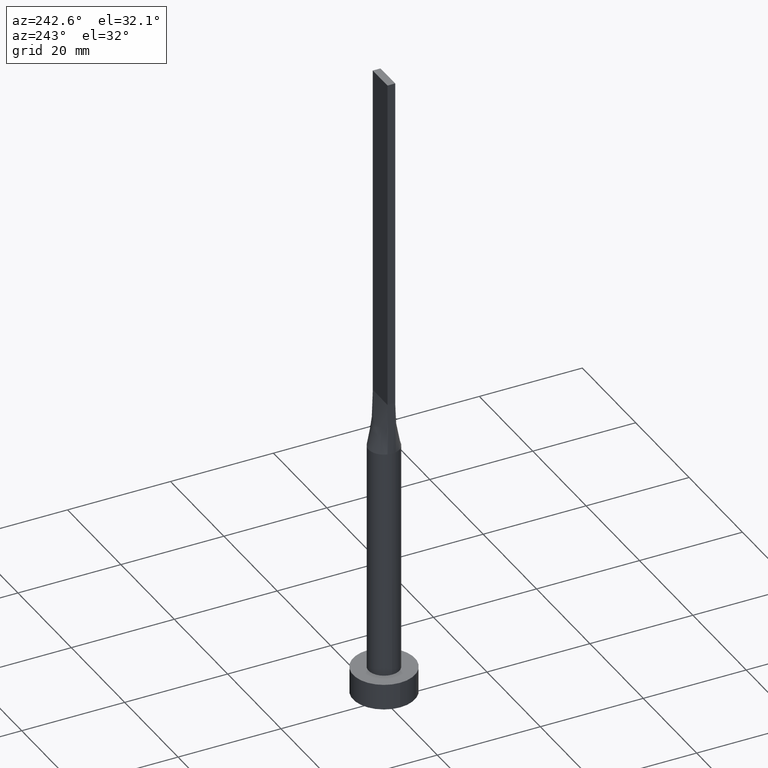
[diagram: clean part render]
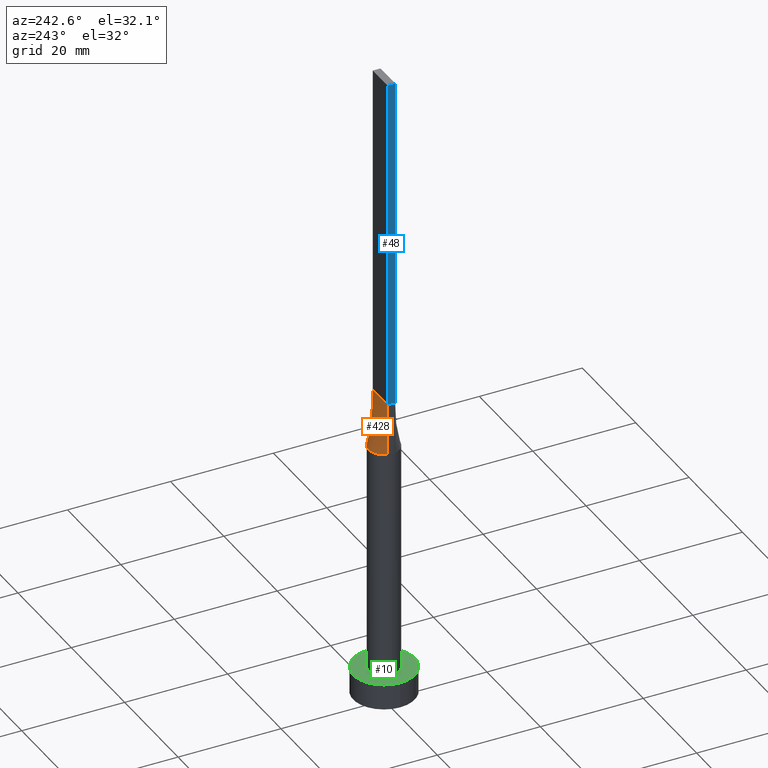
[diagram: same view with three faces highlighted in distinct colors, each labeled with its STEP entity id]
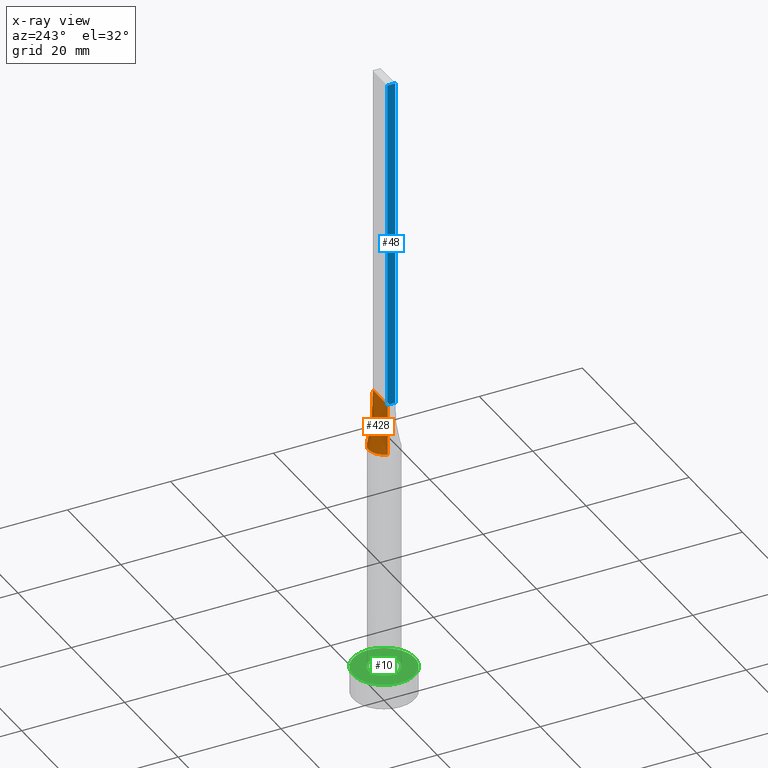
[diagram: x-ray of the same camera — body ghosted, the three highlighted faces saturated]
A machine part, auxiliary view with three faces highlighted in distinct colors.
The next image is the same camera in x-ray (body ghosted, the three faces saturated) — at least one of them is partly hidden behind the body in this view.
Their STEP definitions:

[orange] entity #428 — the highlighted face is a freeform B-spline surface patch.
#3 = CARTESIAN_POINT ( 'NONE',  ( -0.7628506052746797383, 2.924692134573155133, 50.00000000000001421 ) ) ;
#4 = CARTESIAN_POINT ( 'NONE',  ( -1.604166666666666075, 0.7500000000000002220, 60.00000000000000000 ) ) ;
#18 = CARTESIAN_POINT ( 'NONE',  ( -2.733316749964668002, 1.269511353635830453, 50.00000000000000711 ) ) ;
#44 = CARTESIAN_POINT ( 'NONE',  ( -1.447928580458858416, 2.653161878569119558, 50.00000000000000711 ) ) ;
#46 = CARTESIAN_POINT ( 'NONE',  ( 0.2291666666666677121, 0.7500000000000003331, 60.00000000000000000 ) ) ;
#50 = CARTESIAN_POINT ( 'NONE',  ( 1.833333333333333925, 0.7500000000000002220, 60.00000000000000000 ) ) ;
#68 = CARTESIAN_POINT ( 'NONE',  ( -2.830829925251659329, 1.022044525068634302, 50.00000000000000711 ) ) ;
#87 = CARTESIAN_POINT ( 'NONE',  ( 0.9166666666666676289, 0.7500000000000003331, 60.00000000000000000 ) ) ;
#90 = CARTESIAN_POINT ( 'NONE',  ( 2.442412046818595250, 1.765588549521970529, 49.99999999999999289 ) ) ;
#94 = CARTESIAN_POINT ( 'NONE',  ( 2.442412046818595250, 1.765588549521970529, 49.99999999999999289 ) ) ;
#95 = CARTESIAN_POINT ( 'NONE',  ( 2.248179627679386172, 2.014142483996539834, 49.99999999999998579 ) ) ;
#112 = ORIENTED_EDGE ( 'NONE', *, *, #255, .T. ) ;
#113 = CARTESIAN_POINT ( 'NONE',  ( -2.894506632021299541, 0.7894116946786271516, 49.99999999999999289 ) ) ;
#114 = CARTESIAN_POINT ( 'NONE',  ( 2.750000000000000000, 0.7500000000000002220, 60.00000000000000000 ) ) ;
#117 = EDGE_CURVE ( 'NONE', #457, #373, #244, .T. ) ;
#127 = CARTESIAN_POINT ( 'NONE',  ( 2.822145731856598339, 0.7696761086881640512, 54.99999999999999289 ) ) ;
#134 = CARTESIAN_POINT ( 'NONE',  ( 2.520833333333333481, 0.7500000000000002220, 60.00000000000000000 ) ) ;
#137 = CARTESIAN_POINT ( 'NONE',  ( -1.751288851749021491, 2.458468820606022565, 49.99999999999997868 ) ) ;
#151 = VECTOR ( 'NONE', #209, 1000.000000000000000 ) ;
#182 = DIRECTION ( 'NONE',  ( -1.000000000000000000, -0.000000000000000000, -0.000000000000000000 ) ) ;
#188 = CARTESIAN_POINT ( 'NONE',  ( 2.733316749964668446, 1.269511353635831341, 50.00000000000001421 ) ) ;
#191 = CARTESIAN_POINT ( 'NONE',  ( 1.751288851749022379, 2.458468820606022565, 49.99999999999998579 ) ) ;
#192 = CARTESIAN_POINT ( 'NONE',  ( -0.7628506052746797383, 2.924692134573155133, 50.00000000000001421 ) ) ;
#194 = VECTOR ( 'NONE', #485, 1000.000000000000000 ) ;
#209 = DIRECTION ( 'NONE',  ( 0.01442753284129399960, -0.003934781683989194319, 0.9998881756422629552 ) ) ;
#224 = CARTESIAN_POINT ( 'NONE',  ( -0.3818979204996078569, 3.000000000000000888, 49.99999999999999289 ) ) ;
#225 = CARTESIAN_POINT ( 'NONE',  ( -2.291666666666666075, 0.7500000000000002220, 60.00000000000000000 ) ) ;
#228 = CARTESIAN_POINT ( 'NONE',  ( -2.733316749964668002, 1.269511353635830453, 50.00000000000000711 ) ) ;
#230 = CARTESIAN_POINT ( 'NONE',  ( 2.894482401701604424, 0.7894050286368272662, 49.99999999999999289 ) ) ;
#244 = B_SPLINE_CURVE_WITH_KNOTS ( 'NONE', 3,
 ( #536, #542, #495, #94, #317, #191, #270, #506, #444, #224, #3, #539, #274, #380, #468, #18, #68, #113 ),
 .UNSPECIFIED., .F., .F.,
 ( 4, 2, 2, 2, 2, 2, 2, 2, 4 ),
 ( 0.000000000000000000, 0.1250000000000000000, 0.2500000000000000000, 0.3750000000000000000, 0.5000000000000000000, 0.6250000000000000000, 0.7500000000000000000, 0.8750000000000000000, 1.000000000000000000 ),
 .UNSPECIFIED. ) ;
#253 = ORIENTED_EDGE ( 'NONE', *, *, #117, .T. ) ;
#255 = EDGE_CURVE ( 'NONE', #373, #360, #329, .T. ) ;
#263 = CARTESIAN_POINT ( 'NONE',  ( -2.894291463713196677, 0.7893522173763257710, 49.99999999999999289 ) ) ;
#265 = CARTESIAN_POINT ( 'NONE',  ( 0.7628506052746800714, 2.924692134573154689, 50.00000000000000711 ) ) ;
#270 = CARTESIAN_POINT ( 'NONE',  ( 1.447928580458859305, 2.653161878569118670, 50.00000000000000711 ) ) ;
#271 = CARTESIAN_POINT ( 'NONE',  ( 1.447928580458859305, 2.653161878569118670, 50.00000000000000711 ) ) ;
#274 = CARTESIAN_POINT ( 'NONE',  ( -1.751288851749021491, 2.458468820606022565, 49.99999999999997868 ) ) ;
#275 = CARTESIAN_POINT ( 'NONE',  ( 2.291666666666666963, 0.7500000000000002220, 60.00000000000000000 ) ) ;
#291 = CARTESIAN_POINT ( 'NONE',  ( -2.822145731856598339, 0.7696761086881630520, 54.99999999999999289 ) ) ;
#307 = CARTESIAN_POINT ( 'NONE',  ( 1.604166666666667629, 0.7500000000000002220, 60.00000000000000000 ) ) ;
#314 = CARTESIAN_POINT ( 'NONE',  ( -0.9166666666666656305, 0.7500000000000002220, 60.00000000000000000 ) ) ;
#317 = CARTESIAN_POINT ( 'NONE',  ( 2.248179627679386172, 2.014142483996539834, 49.99999999999998579 ) ) ;
#329 = LINE ( 'NONE', #291, #151 ) ;
#348 = CARTESIAN_POINT ( 'NONE',  ( 1.145833333333334147, 0.7500000000000003331, 60.00000000000000000 ) ) ;
#350 = CARTESIAN_POINT ( 'NONE',  ( 0.3818979204996085230, 3.000000000000001332, 50.00000000000000000 ) ) ;
#351 = ORIENTED_EDGE ( 'NONE', *, *, #530, .F. ) ;
#354 = CARTESIAN_POINT ( 'NONE',  ( -2.442412046818596139, 1.765588549521969641, 50.00000000000001421 ) ) ;
#360 = VERTEX_POINT ( 'NONE', #395 ) ;
#373 = VERTEX_POINT ( 'NONE', #520 ) ;
#380 = CARTESIAN_POINT ( 'NONE',  ( -2.248179627679385728, 2.014142483996540278, 49.99999999999998579 ) ) ;
#389 = EDGE_CURVE ( 'NONE', #457, #442, #567, .T. ) ;
#395 = CARTESIAN_POINT ( 'NONE',  ( -2.750000000000000000, 0.7500000000000002220, 60.00000000000000000 ) ) ;
#402 = LINE ( 'NONE', #575, #514 ) ;
#406 = CARTESIAN_POINT ( 'NONE',  ( 0.4583333333333343695, 0.7500000000000003331, 60.00000000000000000 ) ) ;
#410 = CARTESIAN_POINT ( 'NONE',  ( -2.520833333333333037, 0.7500000000000002220, 60.00000000000000000 ) ) ;
#414 = EDGE_LOOP ( 'NONE', ( #253, #112, #351, #505 ) ) ;
#422 = B_SPLINE_SURFACE_WITH_KNOTS ( 'NONE', 3, 1, ( 
 ( #516, #114 ),
 ( #429, #134 ),
 ( #188, #275 ),
 ( #90, #50 ),
 ( #95, #307 ),
 ( #488, #348 ),
 ( #271, #87 ),
 ( #265, #406 ),
 ( #350, #46 ),
 ( #445, #535 ),
 ( #192, #453 ),
 ( #44, #314 ),
 ( #137, #579 ),
 ( #541, #4 ),
 ( #354, #537 ),
 ( #228, #225 ),
 ( #571, #410 ),
 ( #263, #493 ) ),
 .UNSPECIFIED., .F., .F., .F.,
 ( 4, 2, 2, 2, 2, 2, 2, 2, 4 ),
 ( 2, 2 ),
 ( 0.000000000000000000, 0.1250000000000000000, 0.2500000000000000000, 0.3750000000000000000, 0.5000000000000000000, 0.6250000000000000000, 0.7500000000000000000, 0.8750000000000000000, 1.000000000000000000 ),
 ( 0.000000000000000000, 1.000000000000000000 ),
 .UNSPECIFIED. ) ;
#428 = ADVANCED_FACE ( 'NONE', ( #560 ), #422, .T. ) ;
#429 = CARTESIAN_POINT ( 'NONE',  ( 2.830829925251657997, 1.022044525068634302, 50.00000000000000711 ) ) ;
#442 = VERTEX_POINT ( 'NONE', #533 ) ;
#444 = CARTESIAN_POINT ( 'NONE',  ( 0.3818979204996085230, 3.000000000000001332, 50.00000000000000000 ) ) ;
#445 = CARTESIAN_POINT ( 'NONE',  ( -0.3818979204996078569, 3.000000000000000888, 49.99999999999999289 ) ) ;
#453 = CARTESIAN_POINT ( 'NONE',  ( -0.4583333333333323711, 0.7500000000000003331, 60.00000000000000000 ) ) ;
#457 = VERTEX_POINT ( 'NONE', #230 ) ;
#468 = CARTESIAN_POINT ( 'NONE',  ( -2.442412046818596139, 1.765588549521969641, 50.00000000000001421 ) ) ;
#485 = DIRECTION ( 'NONE',  ( -0.01442753284129399960, -0.003934781683989389475, 0.9998881756422629552 ) ) ;
#488 = CARTESIAN_POINT ( 'NONE',  ( 1.751288851749022379, 2.458468820606022565, 49.99999999999998579 ) ) ;
#493 = CARTESIAN_POINT ( 'NONE',  ( -2.750000000000000000, 0.7500000000000002220, 60.00000000000000000 ) ) ;
#495 = CARTESIAN_POINT ( 'NONE',  ( 2.733316749964668446, 1.269511353635831341, 50.00000000000001421 ) ) ;
#505 = ORIENTED_EDGE ( 'NONE', *, *, #389, .F. ) ;
#506 = CARTESIAN_POINT ( 'NONE',  ( 0.7628506052746800714, 2.924692134573154689, 50.00000000000000711 ) ) ;
#514 = VECTOR ( 'NONE', #182, 1000.000000000000000 ) ;
#516 = CARTESIAN_POINT ( 'NONE',  ( 2.894291463713197121, 0.7893522173763263261, 49.99999999999999289 ) ) ;
#520 = CARTESIAN_POINT ( 'NONE',  ( -2.894506632021299541, 0.7894116946786271516, 49.99999999999999289 ) ) ;
#530 = EDGE_CURVE ( 'NONE', #442, #360, #402, .T. ) ;
#533 = CARTESIAN_POINT ( 'NONE',  ( 2.750000000000000000, 0.7500000000000002220, 60.00000000000000000 ) ) ;
#535 = CARTESIAN_POINT ( 'NONE',  ( -0.2291666666666656582, 0.7500000000000003331, 60.00000000000000000 ) ) ;
#536 = CARTESIAN_POINT ( 'NONE',  ( 2.894482401701604424, 0.7894050286368272662, 49.99999999999999289 ) ) ;
#537 = CARTESIAN_POINT ( 'NONE',  ( -1.833333333333332593, 0.7500000000000002220, 60.00000000000000000 ) ) ;
#539 = CARTESIAN_POINT ( 'NONE',  ( -1.447928580458858416, 2.653161878569119558, 50.00000000000000711 ) ) ;
#541 = CARTESIAN_POINT ( 'NONE',  ( -2.248179627679385728, 2.014142483996540278, 49.99999999999998579 ) ) ;
#542 = CARTESIAN_POINT ( 'NONE',  ( 2.830829925251657997, 1.022044525068634302, 50.00000000000000711 ) ) ;
#560 = FACE_OUTER_BOUND ( 'NONE', #414, .T. ) ;
#567 = LINE ( 'NONE', #127, #194 ) ;
#571 = CARTESIAN_POINT ( 'NONE',  ( -2.830829925251659329, 1.022044525068634302, 50.00000000000000711 ) ) ;
#575 = CARTESIAN_POINT ( 'NONE',  ( -2.750000000000000000, 0.7500000000000002220, 60.00000000000000000 ) ) ;
#579 = CARTESIAN_POINT ( 'NONE',  ( -1.145833333333332371, 0.7500000000000002220, 60.00000000000000000 ) ) ;

[blue] entity #48 — the highlighted planar face has unit normal (1, 0, -0).
#13 = DIRECTION ( 'NONE',  ( 1.000000000000000000, 0.000000000000000000, -0.000000000000000000 ) ) ;
#16 = FACE_OUTER_BOUND ( 'NONE', #79, .T. ) ;
#24 = CARTESIAN_POINT ( 'NONE',  ( -2.750000000000000000, -0.7499999999999994449, 125.0000000000000000 ) ) ;
#29 = EDGE_CURVE ( 'NONE', #150, #165, #544, .T. ) ;
#37 = EDGE_CURVE ( 'NONE', #360, #245, #156, .T. ) ;
#39 = LINE ( 'NONE', #42, #412 ) ;
#42 = CARTESIAN_POINT ( 'NONE',  ( -2.750000000000000000, -0.7499999999999994449, 125.0000000000000000 ) ) ;
#48 = ADVANCED_FACE ( 'NONE', ( #16 ), #462, .F. ) ;
#65 = VECTOR ( 'NONE', #321, 1000.000000000000000 ) ;
#69 = ORIENTED_EDGE ( 'NONE', *, *, #37, .T. ) ;
#76 = VECTOR ( 'NONE', #260, 1000.000000000000000 ) ;
#79 = EDGE_LOOP ( 'NONE', ( #69, #234, #411, #205 ) ) ;
#85 = CARTESIAN_POINT ( 'NONE',  ( -2.750000000000000000, 0.7500000000000002220, 125.0000000000000000 ) ) ;
#101 = EDGE_CURVE ( 'NONE', #165, #245, #39, .T. ) ;
#109 = CARTESIAN_POINT ( 'NONE',  ( -2.750000000000000000, 0.7500000000000002220, 125.0000000000000000 ) ) ;
#115 = EDGE_CURVE ( 'NONE', #150, #360, #486, .T. ) ;
#141 = AXIS2_PLACEMENT_3D ( 'NONE', #418, #13, #369 ) ;
#150 = VERTEX_POINT ( 'NONE', #211 ) ;
#156 = LINE ( 'NONE', #278, #65 ) ;
#165 = VERTEX_POINT ( 'NONE', #24 ) ;
#172 = VECTOR ( 'NONE', #288, 1000.000000000000000 ) ;
#205 = ORIENTED_EDGE ( 'NONE', *, *, #115, .T. ) ;
#211 = CARTESIAN_POINT ( 'NONE',  ( -2.750000000000000000, 0.7500000000000002220, 125.0000000000000000 ) ) ;
#234 = ORIENTED_EDGE ( 'NONE', *, *, #101, .F. ) ;
#245 = VERTEX_POINT ( 'NONE', #252 ) ;
#252 = CARTESIAN_POINT ( 'NONE',  ( -2.750000000000000000, -0.7499999999999994449, 60.00000000000000000 ) ) ;
#260 = DIRECTION ( 'NONE',  ( -0.000000000000000000, -0.000000000000000000, -1.000000000000000000 ) ) ;
#278 = CARTESIAN_POINT ( 'NONE',  ( -2.750000000000000000, 0.7500000000000002220, 60.00000000000000000 ) ) ;
#288 = DIRECTION ( 'NONE',  ( 0.000000000000000000, -1.000000000000000000, 0.000000000000000000 ) ) ;
#321 = DIRECTION ( 'NONE',  ( 0.000000000000000000, -1.000000000000000000, 0.000000000000000000 ) ) ;
#360 = VERTEX_POINT ( 'NONE', #395 ) ;
#369 = DIRECTION ( 'NONE',  ( -0.000000000000000000, 0.000000000000000000, -1.000000000000000000 ) ) ;
#395 = CARTESIAN_POINT ( 'NONE',  ( -2.750000000000000000, 0.7500000000000002220, 60.00000000000000000 ) ) ;
#396 = DIRECTION ( 'NONE',  ( -0.000000000000000000, -0.000000000000000000, -1.000000000000000000 ) ) ;
#411 = ORIENTED_EDGE ( 'NONE', *, *, #29, .F. ) ;
#412 = VECTOR ( 'NONE', #396, 1000.000000000000000 ) ;
#418 = CARTESIAN_POINT ( 'NONE',  ( -2.750000000000000000, 0.7500000000000002220, 125.0000000000000000 ) ) ;
#462 = PLANE ( 'NONE',  #141 ) ;
#486 = LINE ( 'NONE', #85, #76 ) ;
#544 = LINE ( 'NONE', #109, #172 ) ;

[green] entity #10 — the highlighted planar face has unit normal (0, 0, 1).
#10 = ADVANCED_FACE ( 'NONE', ( #527, #247 ), #285, .T. ) ;
#15 = CARTESIAN_POINT ( 'NONE',  ( -3.000000000000000444, 0.000000000000000000, 5.000000000000000000 ) ) ;
#35 = AXIS2_PLACEMENT_3D ( 'NONE', #80, #481, #565 ) ;
#51 = VERTEX_POINT ( 'NONE', #470 ) ;
#77 = CARTESIAN_POINT ( 'NONE',  ( 0.000000000000000000, 0.000000000000000000, 5.000000000000000000 ) ) ;
#80 = CARTESIAN_POINT ( 'NONE',  ( 0.000000000000000000, 0.000000000000000000, 5.000000000000000000 ) ) ;
#84 = DIRECTION ( 'NONE',  ( 0.000000000000000000, 0.000000000000000000, 1.000000000000000000 ) ) ;
#118 = DIRECTION ( 'NONE',  ( 1.000000000000000000, 0.000000000000000000, 0.000000000000000000 ) ) ;
#162 = DIRECTION ( 'NONE',  ( 1.000000000000000000, 0.000000000000000000, -0.000000000000000000 ) ) ;
#167 = CARTESIAN_POINT ( 'NONE',  ( 0.000000000000000000, 0.000000000000000000, 5.000000000000000000 ) ) ;
#176 = CARTESIAN_POINT ( 'NONE',  ( 6.000000000000000888, 7.347880794884120722E-16, 5.000000000000000000 ) ) ;
#189 = VERTEX_POINT ( 'NONE', #15 ) ;
#198 = CARTESIAN_POINT ( 'NONE',  ( 0.000000000000000000, 0.000000000000000000, 5.000000000000000000 ) ) ;
#200 = ORIENTED_EDGE ( 'NONE', *, *, #318, .T. ) ;
#214 = AXIS2_PLACEMENT_3D ( 'NONE', #198, #555, #162 ) ;
#226 = CIRCLE ( 'NONE', #430, 3.000000000000000444 ) ;
#241 = CIRCLE ( 'NONE', #35, 6.000000000000000888 ) ;
#247 = FACE_OUTER_BOUND ( 'NONE', #497, .T. ) ;
#259 = DIRECTION ( 'NONE',  ( 1.000000000000000000, 0.000000000000000000, 0.000000000000000000 ) ) ;
#261 = VERTEX_POINT ( 'NONE', #176 ) ;
#285 = PLANE ( 'NONE',  #214 ) ;
#303 = EDGE_CURVE ( 'NONE', #51, #189, #226, .T. ) ;
#313 = AXIS2_PLACEMENT_3D ( 'NONE', #77, #475, #118 ) ;
#318 = EDGE_CURVE ( 'NONE', #261, #426, #241, .T. ) ;
#327 = CARTESIAN_POINT ( 'NONE',  ( -6.000000000000000888, 0.000000000000000000, 5.000000000000000000 ) ) ;
#331 = EDGE_CURVE ( 'NONE', #189, #51, #540, .T. ) ;
#366 = ORIENTED_EDGE ( 'NONE', *, *, #407, .T. ) ;
#371 = ORIENTED_EDGE ( 'NONE', *, *, #303, .F. ) ;
#407 = EDGE_CURVE ( 'NONE', #426, #261, #498, .T. ) ;
#426 = VERTEX_POINT ( 'NONE', #327 ) ;
#430 = AXIS2_PLACEMENT_3D ( 'NONE', #478, #558, #525 ) ;
#470 = CARTESIAN_POINT ( 'NONE',  ( 3.000000000000000444, 3.673940397442059868E-16, 5.000000000000000000 ) ) ;
#475 = DIRECTION ( 'NONE',  ( 0.000000000000000000, 0.000000000000000000, 1.000000000000000000 ) ) ;
#478 = CARTESIAN_POINT ( 'NONE',  ( 0.000000000000000000, 0.000000000000000000, 5.000000000000000000 ) ) ;
#480 = ORIENTED_EDGE ( 'NONE', *, *, #331, .F. ) ;
#481 = DIRECTION ( 'NONE',  ( 0.000000000000000000, 0.000000000000000000, 1.000000000000000000 ) ) ;
#497 = EDGE_LOOP ( 'NONE', ( #366, #200 ) ) ;
#498 = CIRCLE ( 'NONE', #566, 6.000000000000000888 ) ;
#525 = DIRECTION ( 'NONE',  ( 1.000000000000000000, 0.000000000000000000, 0.000000000000000000 ) ) ;
#527 = FACE_BOUND ( 'NONE', #581, .T. ) ;
#540 = CIRCLE ( 'NONE', #313, 3.000000000000000444 ) ;
#555 = DIRECTION ( 'NONE',  ( 0.000000000000000000, 0.000000000000000000, 1.000000000000000000 ) ) ;
#558 = DIRECTION ( 'NONE',  ( 0.000000000000000000, 0.000000000000000000, 1.000000000000000000 ) ) ;
#565 = DIRECTION ( 'NONE',  ( 1.000000000000000000, 0.000000000000000000, 0.000000000000000000 ) ) ;
#566 = AXIS2_PLACEMENT_3D ( 'NONE', #167, #84, #259 ) ;
#581 = EDGE_LOOP ( 'NONE', ( #480, #371 ) ) ;